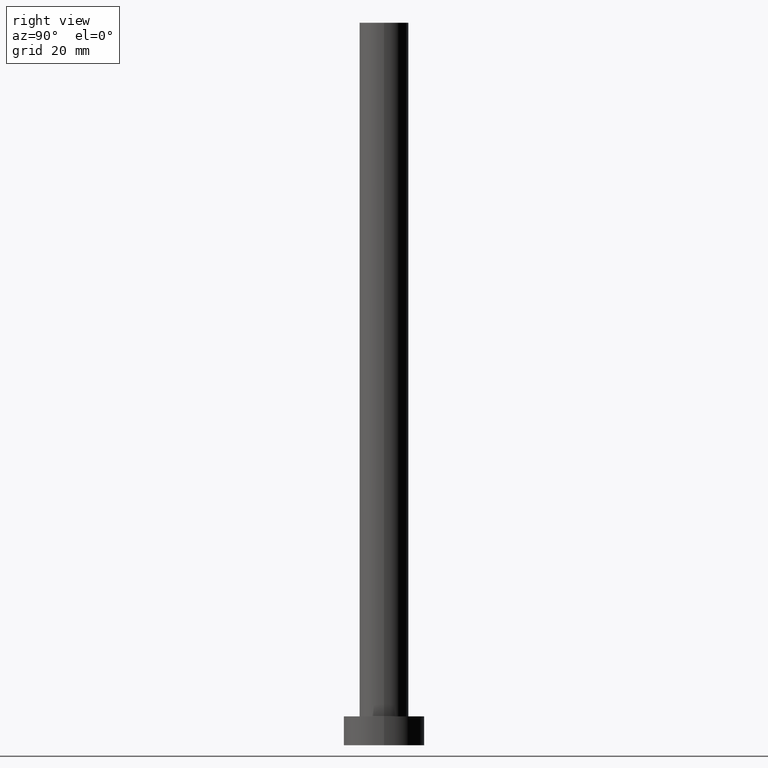
[diagram: clean part render]
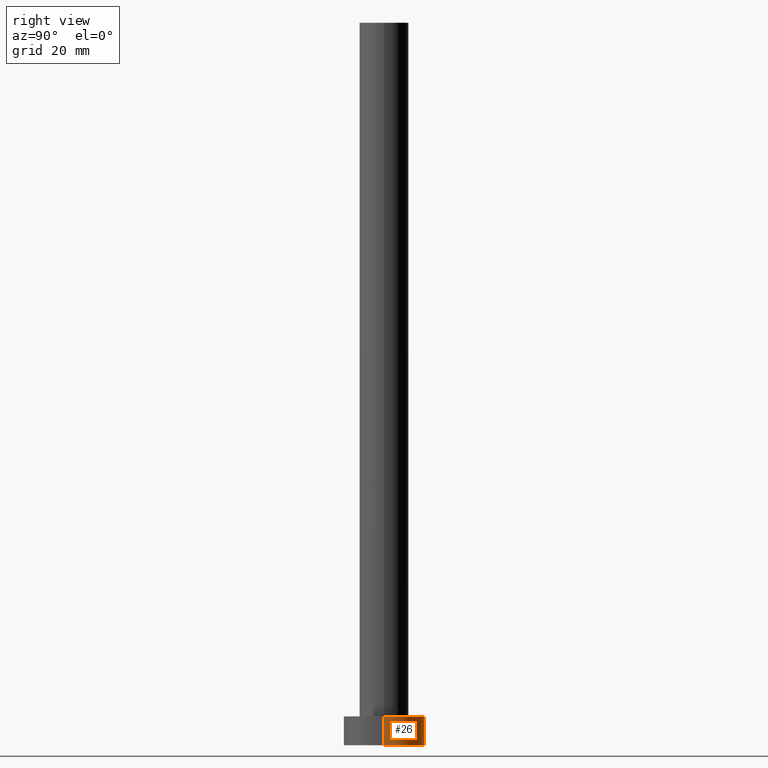
[diagram: same view with one face highlighted and labeled with its STEP entity id]
A machine part, right view. The second image highlights one B-rep face of the part: STEP entity #26.
In plain terms, the highlighted cylindrical surface (partial cylindrical patch) has radius 7 mm, axis along (-0, -0, -1).
Its self-contained STEP definition (entity closure, byte-faithful):
#1 = CIRCLE ( 'NONE', #147, 7.000000000000000000 ) ;
#5 = CARTESIAN_POINT ( 'NONE',  ( 7.000000000000000000, 8.572527594031473190E-16, 5.000000000000000000 ) ) ;
#19 = VERTEX_POINT ( 'NONE', #96 ) ;
#21 = AXIS2_PLACEMENT_3D ( 'NONE', #138, #134, #157 ) ;
#26 = ADVANCED_FACE ( 'NONE', ( #217 ), #159, .T. ) ;
#53 = CARTESIAN_POINT ( 'NONE',  ( -7.000000000000000000, 0.000000000000000000, 5.000000000000000000 ) ) ;
#56 = VERTEX_POINT ( 'NONE', #53 ) ;
#58 = DIRECTION ( 'NONE',  ( -0.000000000000000000, -0.000000000000000000, -1.000000000000000000 ) ) ;
#73 = ORIENTED_EDGE ( 'NONE', *, *, #213, .F. ) ;
#79 = CARTESIAN_POINT ( 'NONE',  ( 0.000000000000000000, 0.000000000000000000, 0.000000000000000000 ) ) ;
#80 = DIRECTION ( 'NONE',  ( 1.000000000000000000, 0.000000000000000000, 0.000000000000000000 ) ) ;
#84 = VECTOR ( 'NONE', #58, 1000.000000000000000 ) ;
#91 = VERTEX_POINT ( 'NONE', #164 ) ;
#96 = CARTESIAN_POINT ( 'NONE',  ( 7.000000000000000000, 8.572527594031473190E-16, 5.000000000000000000 ) ) ;
#123 = DIRECTION ( 'NONE',  ( 0.000000000000000000, 0.000000000000000000, 1.000000000000000000 ) ) ;
#126 = LINE ( 'NONE', #5, #84 ) ;
#134 = DIRECTION ( 'NONE',  ( -0.000000000000000000, -0.000000000000000000, -1.000000000000000000 ) ) ;
#137 = ORIENTED_EDGE ( 'NONE', *, *, #250, .T. ) ;
#138 = CARTESIAN_POINT ( 'NONE',  ( 0.000000000000000000, 0.000000000000000000, 5.000000000000000000 ) ) ;
#141 = AXIS2_PLACEMENT_3D ( 'NONE', #79, #123, #80 ) ;
#145 = DIRECTION ( 'NONE',  ( 0.000000000000000000, 0.000000000000000000, 1.000000000000000000 ) ) ;
#147 = AXIS2_PLACEMENT_3D ( 'NONE', #165, #145, #225 ) ;
#157 = DIRECTION ( 'NONE',  ( -1.000000000000000000, 0.000000000000000000, 0.000000000000000000 ) ) ;
#159 = CYLINDRICAL_SURFACE ( 'NONE', #21, 7.000000000000000000 ) ;
#164 = CARTESIAN_POINT ( 'NONE',  ( -7.000000000000000000, 0.000000000000000000, 0.000000000000000000 ) ) ;
#165 = CARTESIAN_POINT ( 'NONE',  ( 0.000000000000000000, 0.000000000000000000, 5.000000000000000000 ) ) ;
#168 = VECTOR ( 'NONE', #201, 1000.000000000000000 ) ;
#185 = CARTESIAN_POINT ( 'NONE',  ( -7.000000000000000000, 0.000000000000000000, 5.000000000000000000 ) ) ;
#192 = EDGE_LOOP ( 'NONE', ( #237, #137, #220, #73 ) ) ;
#199 = EDGE_CURVE ( 'NONE', #233, #91, #203, .T. ) ;
#201 = DIRECTION ( 'NONE',  ( -0.000000000000000000, -0.000000000000000000, -1.000000000000000000 ) ) ;
#202 = LINE ( 'NONE', #185, #168 ) ;
#203 = CIRCLE ( 'NONE', #141, 7.000000000000000000 ) ;
#213 = EDGE_CURVE ( 'NONE', #56, #91, #202, .T. ) ;
#217 = FACE_OUTER_BOUND ( 'NONE', #192, .T. ) ;
#220 = ORIENTED_EDGE ( 'NONE', *, *, #199, .T. ) ;
#225 = DIRECTION ( 'NONE',  ( 1.000000000000000000, 0.000000000000000000, 0.000000000000000000 ) ) ;
#233 = VERTEX_POINT ( 'NONE', #243 ) ;
#237 = ORIENTED_EDGE ( 'NONE', *, *, #251, .F. ) ;
#243 = CARTESIAN_POINT ( 'NONE',  ( 7.000000000000000000, 8.572527594031473190E-16, 0.000000000000000000 ) ) ;
#250 = EDGE_CURVE ( 'NONE', #19, #233, #126, .T. ) ;
#251 = EDGE_CURVE ( 'NONE', #19, #56, #1, .T. ) ;